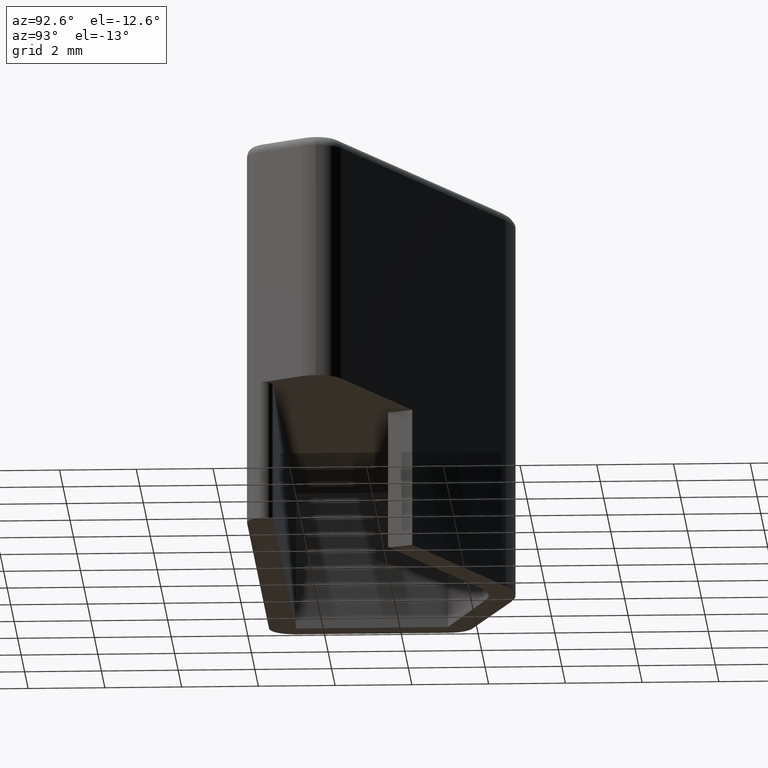
[diagram: clean part render]
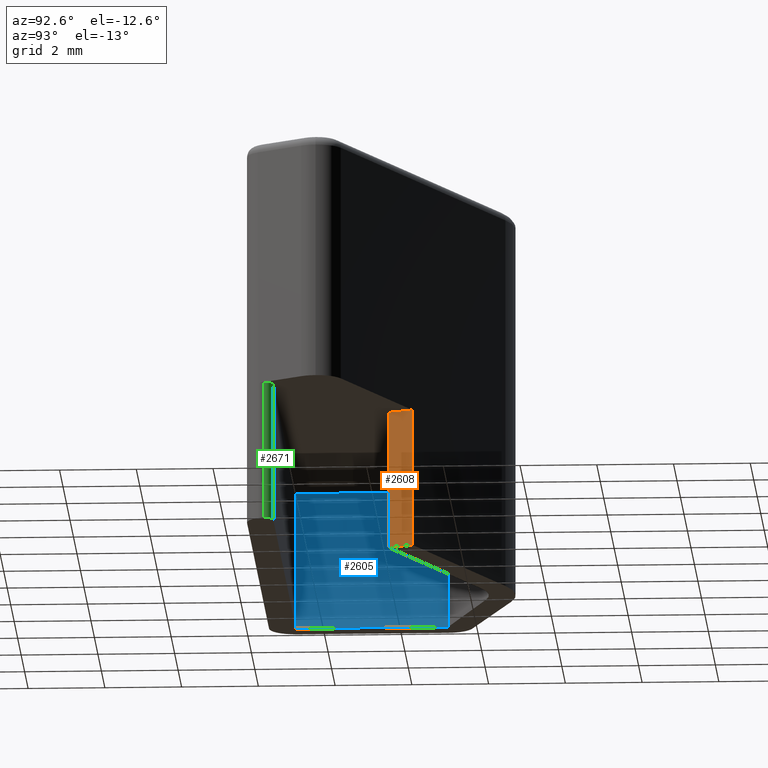
[diagram: same view with three faces highlighted in distinct colors, each labeled with its STEP entity id]
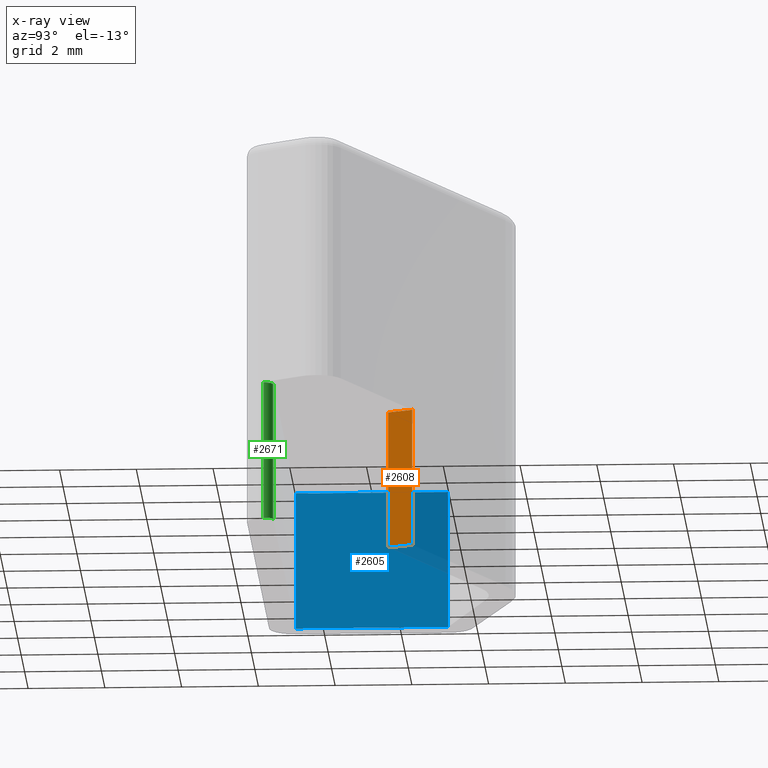
[diagram: x-ray of the same camera — body ghosted, the three highlighted faces saturated]
A machine part, auxiliary view with three faces highlighted in distinct colors.
The next image is the same camera in x-ray (body ghosted, the three faces saturated) — at least one of them is partly hidden behind the body in this view.
Their STEP definitions:

[orange] entity #2608 — the highlighted planar face has unit normal (-0.9156, 0.4021, 0).
#310 = DIRECTION ( 'NONE',  ( -0.4020838073582090300, -0.9156028679838911200, 0.0000000000000000000 ) ) ;
#316 = LINE ( 'NONE', #327, #2219 ) ;
#327 = CARTESIAN_POINT ( 'NONE',  ( 227.1093188537675200, 146.0700179700759800, 30.90000000000000200 ) ) ;
#360 = LINE ( 'NONE', #380, #2266 ) ;
#378 = DIRECTION ( 'NONE',  ( -0.4020838073582090300, -0.9156028679838911200, 0.0000000000000000000 ) ) ;
#380 = CARTESIAN_POINT ( 'NONE',  ( 227.1093188537675200, 146.0700179700759800, 34.50000000000000000 ) ) ;
#580 = DIRECTION ( 'NONE',  ( 0.0000000000000000000, 0.0000000000000000000, 1.000000000000000000 ) ) ;
#610 = CARTESIAN_POINT ( 'NONE',  ( 227.1093188537675200, 146.0700179700759800, 30.90000000000000200 ) ) ;
#615 = LINE ( 'NONE', #610, #2300 ) ;
#625 = DIRECTION ( 'NONE',  ( 0.0000000000000000000, 0.0000000000000000000, 1.000000000000000000 ) ) ;
#657 = LINE ( 'NONE', #662, #2256 ) ;
#662 = CARTESIAN_POINT ( 'NONE',  ( 227.3907615848669900, 146.7109036935299900, 30.90000000000000200 ) ) ;
#686 = DIRECTION ( 'NONE',  ( -0.4020838073582090300, -0.9156028679838911200, 0.0000000000000000000 ) ) ;
#690 = CARTESIAN_POINT ( 'NONE',  ( 227.1093188537675200, 146.0700179700759800, 30.90000000000000200 ) ) ;
#698 = PLANE ( 'NONE',  #2367 ) ;
#711 = DIRECTION ( 'NONE',  ( -0.9156028679838911200, 0.4020838073582090300, 0.0000000000000000000 ) ) ;
#724 = FACE_OUTER_BOUND ( 'NONE', #1860, .T. ) ;
#1202 = ORIENTED_EDGE ( 'NONE', *, *, #2589, .F. ) ;
#1208 = ORIENTED_EDGE ( 'NONE', *, *, #2546, .T. ) ;
#1236 = ORIENTED_EDGE ( 'NONE', *, *, #2594, .T. ) ;
#1240 = ORIENTED_EDGE ( 'NONE', *, *, #2535, .F. ) ;
#1501 = CARTESIAN_POINT ( 'NONE',  ( 227.3907615848669900, 146.7109036935299900, 30.90000000000000200 ) ) ;
#1520 = CARTESIAN_POINT ( 'NONE',  ( 227.3907615848669900, 146.7109036935299900, 34.50000000000000000 ) ) ;
#1538 = CARTESIAN_POINT ( 'NONE',  ( 227.1093188537675500, 146.0700179700760900, 34.50000000000000000 ) ) ;
#1618 = CARTESIAN_POINT ( 'NONE',  ( 227.1093188537675200, 146.0700179700759800, 30.90000000000000200 ) ) ;
#1860 = EDGE_LOOP ( 'NONE', ( #1208, #1202, #1240, #1236 ) ) ;
#1909 = VERTEX_POINT ( 'NONE', #1501 ) ;
#1980 = VERTEX_POINT ( 'NONE', #1538 ) ;
#1984 = VERTEX_POINT ( 'NONE', #1520 ) ;
#1998 = VERTEX_POINT ( 'NONE', #1618 ) ;
#2219 = VECTOR ( 'NONE', #310, 999.9999999999998900 ) ;
#2256 = VECTOR ( 'NONE', #625, 1000.000000000000000 ) ;
#2266 = VECTOR ( 'NONE', #378, 999.9999999999998900 ) ;
#2300 = VECTOR ( 'NONE', #580, 1000.000000000000000 ) ;
#2367 = AXIS2_PLACEMENT_3D ( 'NONE', #690, #711, #686 ) ;
#2535 = EDGE_CURVE ( 'NONE', #1909, #1998, #316, .T. ) ;
#2546 = EDGE_CURVE ( 'NONE', #1984, #1980, #360, .T. ) ;
#2589 = EDGE_CURVE ( 'NONE', #1998, #1980, #615, .T. ) ;
#2594 = EDGE_CURVE ( 'NONE', #1909, #1984, #657, .T. ) ;
#2608 = ADVANCED_FACE ( 'NONE', ( #724 ), #698, .F. ) ;

[blue] entity #2605 — the highlighted planar face has unit normal (-1, 0, 0).
#119 = DIRECTION ( 'NONE',  ( 0.0000000000000000000, 1.000000000000000000, 0.0000000000000000000 ) ) ;
#124 = CARTESIAN_POINT ( 'NONE',  ( 217.5528882970909900, 147.1958377572252100, 34.50000000000000000 ) ) ;
#134 = LINE ( 'NONE', #124, #2144 ) ;
#136 = DIRECTION ( 'NONE',  ( 0.0000000000000000000, 0.0000000000000000000, 1.000000000000000000 ) ) ;
#139 = CARTESIAN_POINT ( 'NONE',  ( 217.5528882970909900, 143.2321278490894100, 34.50000000000000000 ) ) ;
#162 = LINE ( 'NONE', #139, #2188 ) ;
#234 = DIRECTION ( 'NONE',  ( 0.0000000000000000000, -1.000000000000000000, 0.0000000000000000000 ) ) ;
#247 = CARTESIAN_POINT ( 'NONE',  ( 217.5528882970909900, 147.1958377572252100, 30.90000000000000200 ) ) ;
#250 = LINE ( 'NONE', #247, #2250 ) ;
#617 = LINE ( 'NONE', #622, #2264 ) ;
#619 = PLANE ( 'NONE',  #2345 ) ;
#622 = CARTESIAN_POINT ( 'NONE',  ( 217.5528882970909900, 143.2321278490894100, 34.50000000000000000 ) ) ;
#624 = CARTESIAN_POINT ( 'NONE',  ( 217.5528882970909900, 147.1958377572252100, 34.50000000000000000 ) ) ;
#627 = DIRECTION ( 'NONE',  ( 0.0000000000000000000, 0.0000000000000000000, 1.000000000000000000 ) ) ;
#631 = DIRECTION ( 'NONE',  ( 0.0000000000000000000, 0.0000000000000000000, 1.000000000000000000 ) ) ;
#649 = FACE_OUTER_BOUND ( 'NONE', #1868, .T. ) ;
#654 = DIRECTION ( 'NONE',  ( -1.000000000000000000, 0.0000000000000000000, 0.0000000000000000000 ) ) ;
#1174 = ORIENTED_EDGE ( 'NONE', *, *, #2507, .F. ) ;
#1203 = ORIENTED_EDGE ( 'NONE', *, *, #2477, .F. ) ;
#1206 = ORIENTED_EDGE ( 'NONE', *, *, #2597, .F. ) ;
#1250 = ORIENTED_EDGE ( 'NONE', *, *, #2483, .T. ) ;
#1516 = CARTESIAN_POINT ( 'NONE',  ( 217.5528882970909900, 147.1958377572252100, 30.90000000000000200 ) ) ;
#1524 = CARTESIAN_POINT ( 'NONE',  ( 217.5528882970909900, 143.2321278490894100, 30.90000000000000200 ) ) ;
#1529 = CARTESIAN_POINT ( 'NONE',  ( 217.5528882970909900, 143.2321278490894100, 34.50000000000000000 ) ) ;
#1537 = CARTESIAN_POINT ( 'NONE',  ( 217.5528882970909900, 147.1958377572252100, 34.50000000000000000 ) ) ;
#1868 = EDGE_LOOP ( 'NONE', ( #1250, #1203, #1206, #1174 ) ) ;
#1936 = VERTEX_POINT ( 'NONE', #1524 ) ;
#1973 = VERTEX_POINT ( 'NONE', #1516 ) ;
#1975 = VERTEX_POINT ( 'NONE', #1537 ) ;
#1987 = VERTEX_POINT ( 'NONE', #1529 ) ;
#2144 = VECTOR ( 'NONE', #136, 1000.000000000000000 ) ;
#2188 = VECTOR ( 'NONE', #119, 1000.000000000000000 ) ;
#2250 = VECTOR ( 'NONE', #234, 1000.000000000000000 ) ;
#2264 = VECTOR ( 'NONE', #631, 1000.000000000000000 ) ;
#2345 = AXIS2_PLACEMENT_3D ( 'NONE', #624, #654, #627 ) ;
#2477 = EDGE_CURVE ( 'NONE', #1987, #1975, #162, .T. ) ;
#2483 = EDGE_CURVE ( 'NONE', #1973, #1975, #134, .T. ) ;
#2507 = EDGE_CURVE ( 'NONE', #1973, #1936, #250, .T. ) ;
#2597 = EDGE_CURVE ( 'NONE', #1936, #1987, #617, .T. ) ;
#2605 = ADVANCED_FACE ( 'NONE', ( #649 ), #619, .F. ) ;

[green] entity #2671 — the highlighted cylindrical surface (edge-blend (fillet) strip) has radius 0.24 mm, axis along (0, 0, 1).
#66 = CARTESIAN_POINT ( 'NONE',  ( 230.8321777548880200, 142.9921292735930100, 30.90000000000000200 ) ) ;
#77 = DIRECTION ( 'NONE',  ( 0.0000000000000000000, 0.0000000000000000000, 1.000000000000000000 ) ) ;
#111 = LINE ( 'NONE', #66, #2160 ) ;
#227 = CARTESIAN_POINT ( 'NONE',  ( 230.5921777548880100, 142.9921292735930100, 30.90000000000000200 ) ) ;
#228 = DIRECTION ( 'NONE',  ( 1.000000000000000000, 0.0000000000000000000, 0.0000000000000000000 ) ) ;
#236 = DIRECTION ( 'NONE',  ( 0.0000000000000000000, 0.0000000000000000000, -1.000000000000000000 ) ) ;
#355 = LINE ( 'NONE', #416, #2277 ) ;
#416 = CARTESIAN_POINT ( 'NONE',  ( 230.5913508572564900, 143.2321278490894100, 30.90000000000000200 ) ) ;
#442 = DIRECTION ( 'NONE',  ( 0.0000000000000000000, 0.0000000000000000000, 1.000000000000000000 ) ) ;
#570 = DIRECTION ( 'NONE',  ( 0.0000000000000000000, 0.0000000000000000000, -1.000000000000000000 ) ) ;
#576 = CARTESIAN_POINT ( 'NONE',  ( 230.5921777548880100, 142.9921292735930100, 34.50000000000000000 ) ) ;
#613 = DIRECTION ( 'NONE',  ( 1.000000000000000000, 0.0000000000000000000, 0.0000000000000000000 ) ) ;
#1031 = CYLINDRICAL_SURFACE ( 'NONE', #2393, 0.2399999999999902200 ) ;
#1060 = FACE_OUTER_BOUND ( 'NONE', #1856, .T. ) ;
#1063 = CARTESIAN_POINT ( 'NONE',  ( 230.5921777548880100, 142.9921292735930100, 30.90000000000000200 ) ) ;
#1064 = DIRECTION ( 'NONE',  ( 0.0000000000000000000, 0.0000000000000000000, 1.000000000000000000 ) ) ;
#1066 = DIRECTION ( 'NONE',  ( 1.000000000000000000, 0.0000000000000000000, 0.0000000000000000000 ) ) ;
#1150 = ORIENTED_EDGE ( 'NONE', *, *, #2462, .F. ) ;
#1209 = ORIENTED_EDGE ( 'NONE', *, *, #2557, .T. ) ;
#1211 = ORIENTED_EDGE ( 'NONE', *, *, #2584, .T. ) ;
#1228 = ORIENTED_EDGE ( 'NONE', *, *, #2510, .F. ) ;
#1482 = CARTESIAN_POINT ( 'NONE',  ( 230.8321777548880200, 142.9921292735930100, 30.90000000000000200 ) ) ;
#1491 = CARTESIAN_POINT ( 'NONE',  ( 230.8321777548880200, 142.9921292735930100, 34.50000000000000000 ) ) ;
#1521 = CARTESIAN_POINT ( 'NONE',  ( 230.5913508572564900, 143.2321278490894100, 34.50000000000000000 ) ) ;
#1611 = CARTESIAN_POINT ( 'NONE',  ( 230.5913508572564900, 143.2321278490894100, 30.90000000000000200 ) ) ;
#1856 = EDGE_LOOP ( 'NONE', ( #1150, #1228, #1209, #1211 ) ) ;
#1881 = VERTEX_POINT ( 'NONE', #1491 ) ;
#1921 = VERTEX_POINT ( 'NONE', #1482 ) ;
#1988 = VERTEX_POINT ( 'NONE', #1521 ) ;
#2002 = VERTEX_POINT ( 'NONE', #1611 ) ;
#2160 = VECTOR ( 'NONE', #77, 1000.000000000000000 ) ;
#2226 = CIRCLE ( 'NONE', #2227, 0.2399999999999902200 ) ;
#2227 = AXIS2_PLACEMENT_3D ( 'NONE', #227, #236, #228 ) ;
#2270 = CIRCLE ( 'NONE', #2282, 0.2399999999999902200 ) ;
#2277 = VECTOR ( 'NONE', #442, 1000.000000000000000 ) ;
#2282 = AXIS2_PLACEMENT_3D ( 'NONE', #576, #570, #613 ) ;
#2393 = AXIS2_PLACEMENT_3D ( 'NONE', #1063, #1064, #1066 ) ;
#2462 = EDGE_CURVE ( 'NONE', #1921, #1881, #111, .T. ) ;
#2510 = EDGE_CURVE ( 'NONE', #2002, #1921, #2226, .T. ) ;
#2557 = EDGE_CURVE ( 'NONE', #2002, #1988, #355, .T. ) ;
#2584 = EDGE_CURVE ( 'NONE', #1988, #1881, #2270, .T. ) ;
#2671 = ADVANCED_FACE ( 'NONE', ( #1060 ), #1031, .T. ) ;